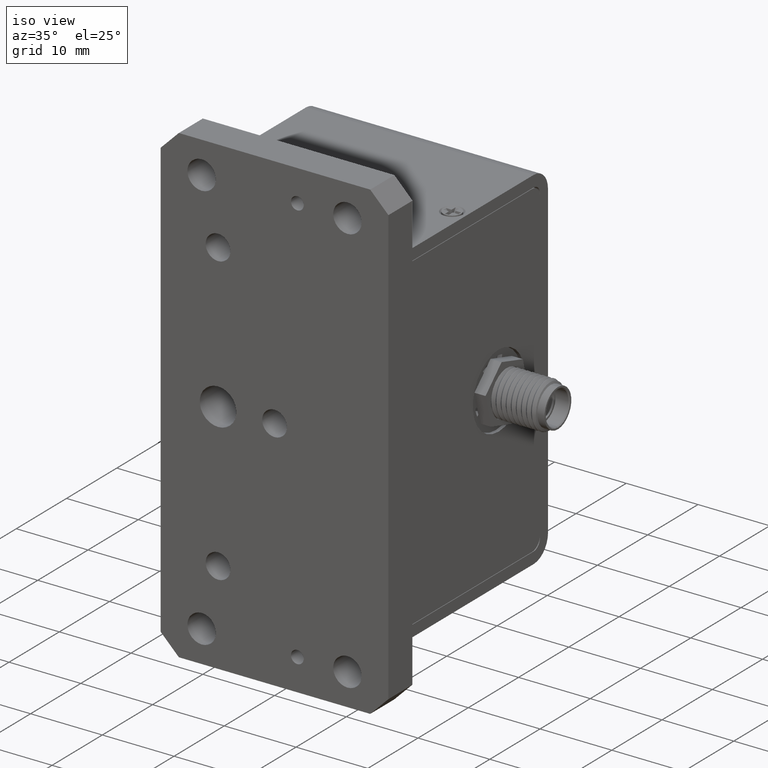
[diagram: clean part render]
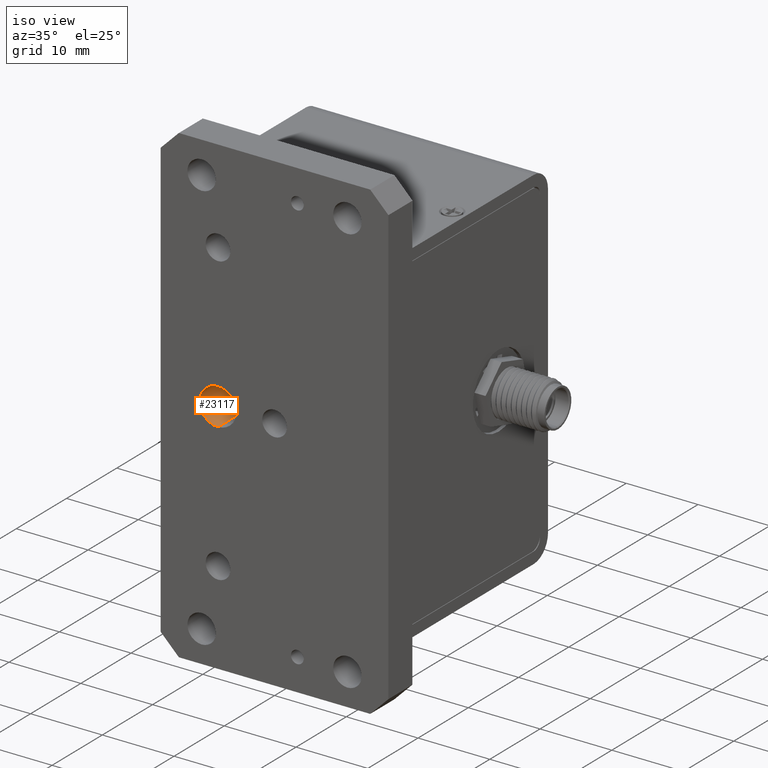
[diagram: same view with one face highlighted and labeled with its STEP entity id]
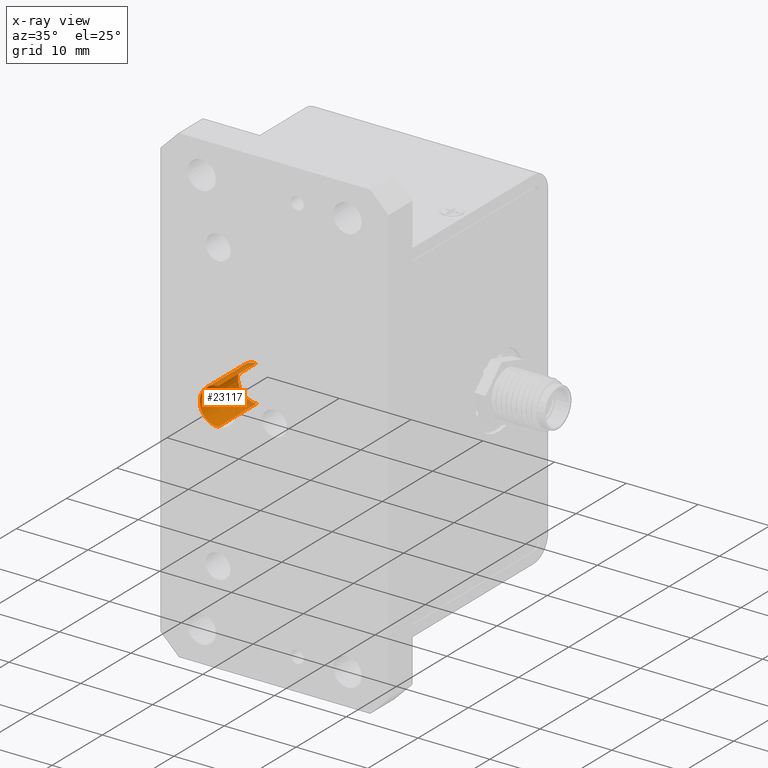
[diagram: x-ray of the same camera — body ghosted, the highlighted face saturated]
A machine part, iso view. The second image highlights one B-rep face of the part: STEP entity #23117.
The next image is the same camera in x-ray: the body ghosted, the highlighted face saturated — about 12% of this face is hidden behind the body in this view.
In plain terms, the highlighted cylindrical surface (edge-blend (fillet) strip) has radius 2.5527 mm, axis along (-0, -1, -0).
Its self-contained STEP definition (entity closure, byte-faithful):
#5880 = DIRECTION ( 'NONE',  ( 0.0000000000000000000, 0.0000000000000000000, -1.000000000000000000 ) ) ;
#6147 = DIRECTION ( 'NONE',  ( -0.0000000000000000000, -1.000000000000000000, -0.0000000000000000000 ) ) ;
#6152 = AXIS2_PLACEMENT_3D ( 'NONE', #6153, #6147, #5880 ) ;
#6153 = CARTESIAN_POINT ( 'NONE',  ( -7.874000000000000600, -1.866361721900564100E-017, -6.938893903907228400E-015 ) ) ;
#6162 = CIRCLE ( 'NONE', #6152, 2.552699999999998000 ) ;
#6286 = DIRECTION ( 'NONE',  ( -0.0000000000000000000, -1.000000000000000000, -0.0000000000000000000 ) ) ;
#6287 = VECTOR ( 'NONE', #6286, 1000.000000000000000 ) ;
#6288 = CARTESIAN_POINT ( 'NONE',  ( -7.874000000000000600, 0.0000000000000000000, 2.552699999999990900 ) ) ;
#6289 = LINE ( 'NONE', #6288, #6287 ) ;
#6302 = CARTESIAN_POINT ( 'NONE',  ( -7.874000000000000600, -1.866361721900564100E-017, 2.552699999999990900 ) ) ;
#6339 = CYLINDRICAL_SURFACE ( 'NONE', #6409, 2.552699999999998000 ) ;
#6366 = CARTESIAN_POINT ( 'NONE',  ( -7.874000000000000600, -1.866361721900564100E-017, -2.552700000000005100 ) ) ;
#6369 = CARTESIAN_POINT ( 'NONE',  ( -7.874000000000000600, 0.0000000000000000000, -6.938893903907228400E-015 ) ) ;
#6370 = FACE_OUTER_BOUND ( 'NONE', #23070, .T. ) ;
#6395 = DIRECTION ( 'NONE',  ( 0.0000000000000000000, 0.0000000000000000000, -1.000000000000000000 ) ) ;
#6396 = DIRECTION ( 'NONE',  ( -0.0000000000000000000, -1.000000000000000000, -0.0000000000000000000 ) ) ;
#6409 = AXIS2_PLACEMENT_3D ( 'NONE', #6369, #6396, #6395 ) ;
#6442 = CIRCLE ( 'NONE', #6516, 2.552699999999998000 ) ;
#6466 = DIRECTION ( 'NONE',  ( -0.0000000000000000000, -1.000000000000000000, -0.0000000000000000000 ) ) ;
#6467 = VECTOR ( 'NONE', #6466, 1000.000000000000000 ) ;
#6468 = CARTESIAN_POINT ( 'NONE',  ( -7.874000000000000600, 0.0000000000000000000, -2.552700000000005100 ) ) ;
#6470 = LINE ( 'NONE', #6468, #6467 ) ;
#6482 = CARTESIAN_POINT ( 'NONE',  ( -7.874000000000000600, 7.619999999999998300, -6.938893903907228400E-015 ) ) ;
#6484 = CARTESIAN_POINT ( 'NONE',  ( -7.874000000000000600, 7.619999999999998300, -2.552700000000005100 ) ) ;
#6498 = CARTESIAN_POINT ( 'NONE',  ( -7.874000000000000600, 7.619999999999998300, 2.552699999999990900 ) ) ;
#6510 = DIRECTION ( 'NONE',  ( 0.0000000000000000000, 0.0000000000000000000, -1.000000000000000000 ) ) ;
#6516 = AXIS2_PLACEMENT_3D ( 'NONE', #6482, #6517, #6510 ) ;
#6517 = DIRECTION ( 'NONE',  ( -0.0000000000000000000, -1.000000000000000000, -0.0000000000000000000 ) ) ;
#23070 = EDGE_LOOP ( 'NONE', ( #23077, #23120, #23072, #23119 ) ) ;
#23072 = ORIENTED_EDGE ( 'NONE', *, *, #23121, .T. ) ;
#23076 = EDGE_CURVE ( 'NONE', #23135, #23081, #6289, .T. ) ;
#23077 = ORIENTED_EDGE ( 'NONE', *, *, #23134, .F. ) ;
#23081 = VERTEX_POINT ( 'NONE', #6302 ) ;
#23117 = ADVANCED_FACE ( 'NONE', ( #6370 ), #6339, .F. ) ;
#23118 = VERTEX_POINT ( 'NONE', #6366 ) ;
#23119 = ORIENTED_EDGE ( 'NONE', *, *, #23123, .F. ) ;
#23120 = ORIENTED_EDGE ( 'NONE', *, *, #23076, .T. ) ;
#23121 = EDGE_CURVE ( 'NONE', #23081, #23118, #6162, .T. ) ;
#23123 = EDGE_CURVE ( 'NONE', #23136, #23118, #6470, .T. ) ;
#23134 = EDGE_CURVE ( 'NONE', #23135, #23136, #6442, .T. ) ;
#23135 = VERTEX_POINT ( 'NONE', #6498 ) ;
#23136 = VERTEX_POINT ( 'NONE', #6484 ) ;